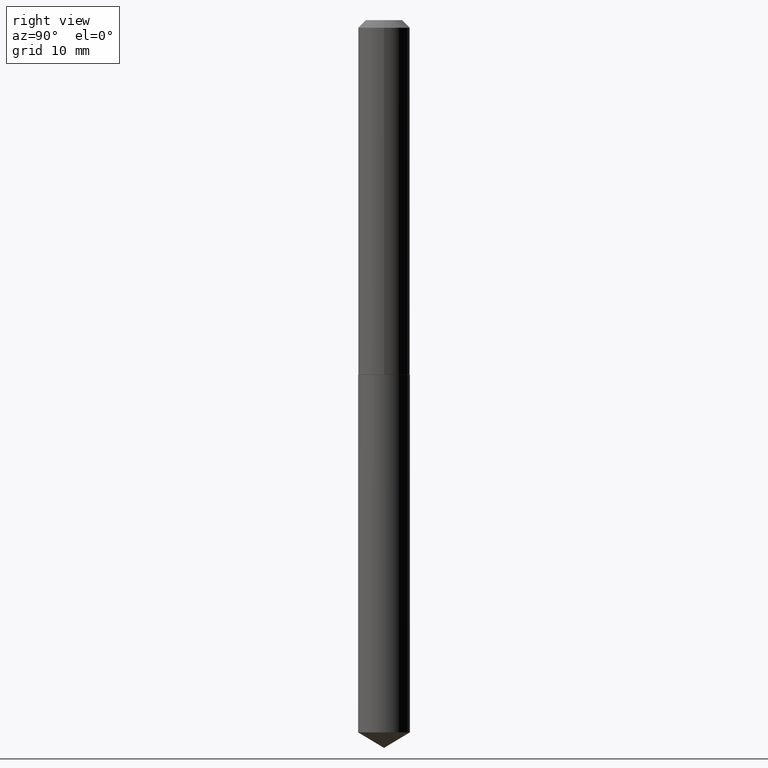
[diagram: clean part render]
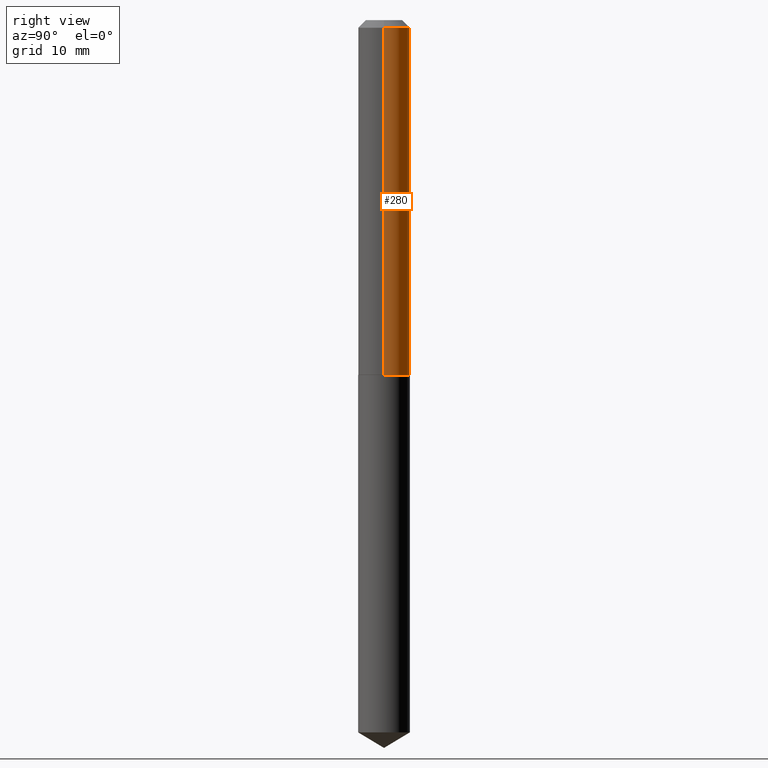
[diagram: same view with one face highlighted and labeled with its STEP entity id]
A machine part, right view. The second image highlights one B-rep face of the part: STEP entity #280.
In plain terms, the highlighted cylindrical surface (edge-blend (fillet) strip) has radius 2.7051 mm, axis along (-0, 0, 1).
Its self-contained STEP definition (entity closure, byte-faithful):
#1 = CIRCLE ( 'NONE', #269, 0.1065000000000001779 ) ;
#5 = DIRECTION ( 'NONE',  ( -2.445468806185136877E-29, 3.491481338843145188E-15, 1.000000000000000000 ) ) ;
#22 = VERTEX_POINT ( 'NONE', #386 ) ;
#32 = CARTESIAN_POINT ( 'NONE',  ( -0.1065000000000001779, -4.349563444473592911E-15, -1.462500000000000355 ) ) ;
#44 = VERTEX_POINT ( 'NONE', #225 ) ;
#74 = DIRECTION ( 'NONE',  ( 1.000000000000000000, -6.982962677686261977E-15, 0.000000000000000000 ) ) ;
#75 = EDGE_CURVE ( 'NONE', #345, #22, #320, .T. ) ;
#80 = ORIENTED_EDGE ( 'NONE', *, *, #75, .T. ) ;
#98 = CIRCLE ( 'NONE', #284, 0.1064999999999999974 ) ;
#104 = ORIENTED_EDGE ( 'NONE', *, *, #155, .T. ) ;
#121 = CARTESIAN_POINT ( 'NONE',  ( 0.000000000000000000, 0.000000000000000000, 0.000000000000000000 ) ) ;
#124 = DIRECTION ( 'NONE',  ( -2.445468806185136877E-29, 3.491481338843145188E-15, 1.000000000000000000 ) ) ;
#138 = VERTEX_POINT ( 'NONE', #307 ) ;
#155 = EDGE_CURVE ( 'NONE', #138, #345, #1, .T. ) ;
#163 = ORIENTED_EDGE ( 'NONE', *, *, #308, .F. ) ;
#164 = DIRECTION ( 'NONE',  ( -2.445468806185136597E-29, 3.491481338843145583E-15, 1.000000000000000000 ) ) ;
#166 = AXIS2_PLACEMENT_3D ( 'NONE', #121, #183, #358 ) ;
#167 = ORIENTED_EDGE ( 'NONE', *, *, #384, .F. ) ;
#180 = CYLINDRICAL_SURFACE ( 'NONE', #166, 0.1065000000000000807 ) ;
#183 = DIRECTION ( 'NONE',  ( -2.445468806185136597E-29, 3.491481338843145583E-15, 1.000000000000000000 ) ) ;
#206 = DIRECTION ( 'NONE',  ( 1.000000000000000000, -6.982962677686267499E-15, 0.000000000000000000 ) ) ;
#223 = CARTESIAN_POINT ( 'NONE',  ( 3.576498129045762721E-29, -5.106291458058101465E-15, -1.462500000000000355 ) ) ;
#225 = CARTESIAN_POINT ( 'NONE',  ( 0.1064999999999999974, -8.527943170124363436E-16, -0.03125000000000019429 ) ) ;
#238 = CARTESIAN_POINT ( 'NONE',  ( 7.642090019328599159E-31, -1.091087918388489774E-16, -0.03125000000000019429 ) ) ;
#247 = EDGE_LOOP ( 'NONE', ( #104, #80, #163, #167 ) ) ;
#265 = LINE ( 'NONE', #319, #299 ) ;
#269 = AXIS2_PLACEMENT_3D ( 'NONE', #223, #164, #74 ) ;
#280 = ADVANCED_FACE ( 'NONE', ( #388 ), #180, .T. ) ;
#284 = AXIS2_PLACEMENT_3D ( 'NONE', #238, #362, #206 ) ;
#291 = CARTESIAN_POINT ( 'NONE',  ( -0.1065000000000000807, 7.567280135845072715E-16, -5.238665871121478096E-30 ) ) ;
#299 = VECTOR ( 'NONE', #5, 39.37007874015748143 ) ;
#307 = CARTESIAN_POINT ( 'NONE',  ( 0.1065000000000001779, -5.849976983231689595E-15, -1.462500000000000355 ) ) ;
#308 = EDGE_CURVE ( 'NONE', #44, #22, #98, .T. ) ;
#319 = CARTESIAN_POINT ( 'NONE',  ( 0.1065000000000000807, -7.436855251735880318E-16, 5.193128266222675235E-30 ) ) ;
#320 = LINE ( 'NONE', #291, #322 ) ;
#322 = VECTOR ( 'NONE', #124, 39.37007874015748143 ) ;
#345 = VERTEX_POINT ( 'NONE', #32 ) ;
#358 = DIRECTION ( 'NONE',  ( 1.000000000000000000, -6.982962677686267499E-15, 4.876176775795935232E-29 ) ) ;
#362 = DIRECTION ( 'NONE',  ( -2.445468806185136597E-29, 3.491481338843145583E-15, 1.000000000000000000 ) ) ;
#384 = EDGE_CURVE ( 'NONE', #138, #44, #265, .T. ) ;
#386 = CARTESIAN_POINT ( 'NONE',  ( -0.1064999999999999974, -1.850972111363967124E-15, -0.03125000000000019429 ) ) ;
#388 = FACE_OUTER_BOUND ( 'NONE', #247, .T. ) ;